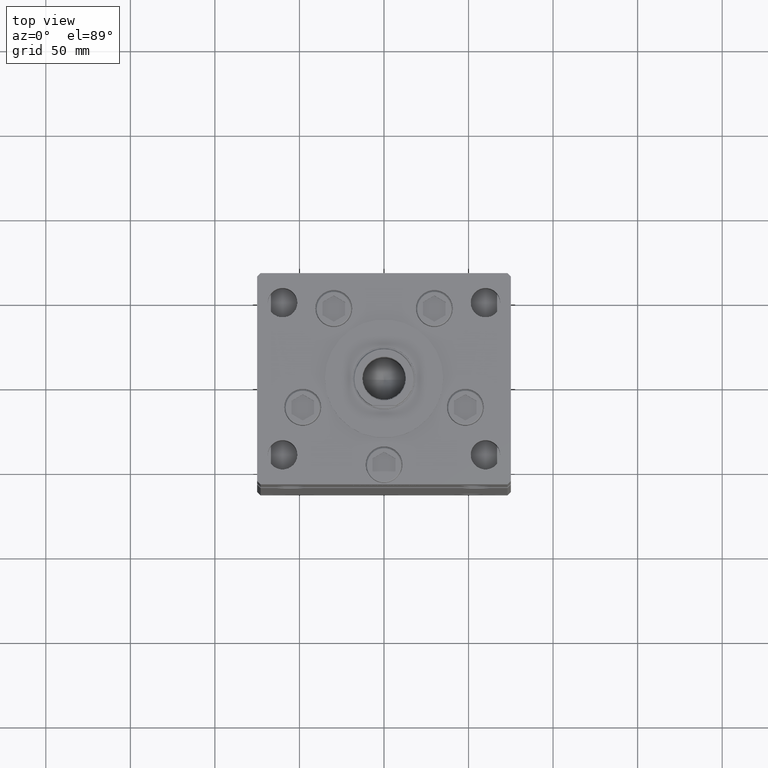
[diagram: clean part render]
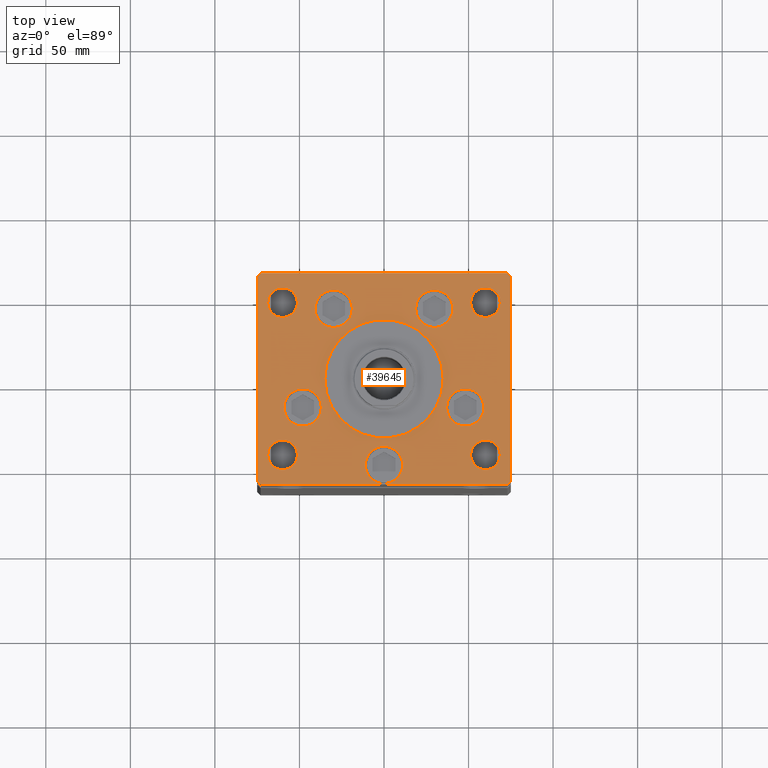
[diagram: same view with one face highlighted and labeled with its STEP entity id]
A machine part, top view. The second image highlights one B-rep face of the part: STEP entity #39645.
In plain terms, the highlighted planar face has unit normal (0, 0, 1).
Its self-contained STEP definition (entity closure, byte-faithful):
#78 = CARTESIAN_POINT ( 'NONE',  ( -73.00000000000001421, -62.50000000000002842, 0.000000000000000000 ) ) ;
#83 = DIRECTION ( 'NONE',  ( 0.7071067811865474617, -0.7071067811865474617, 0.000000000000000000 ) ) ;
#178 = VECTOR ( 'NONE', #50851, 1000.000000000000000 ) ;
#608 = EDGE_CURVE ( 'NONE', #21013, #11850, #14661, .T. ) ;
#827 = DIRECTION ( 'NONE',  ( 0.7071067811865489050, 0.7071067811865462405, 0.000000000000000000 ) ) ;
#1082 = CARTESIAN_POINT ( 'NONE',  ( -40.73102073172061921, 41.43749999999997868, 0.000000000000000000 ) ) ;
#1084 = EDGE_CURVE ( 'NONE', #23775, #37843, #22320, .T. ) ;
#1213 = CARTESIAN_POINT ( 'NONE',  ( -48.08326112068523628, -16.99999999999998934, 0.000000000000000000 ) ) ;
#1422 = VERTEX_POINT ( 'NONE', #19353 ) ;
#1559 = DIRECTION ( 'NONE',  ( 0.000000000000000000, 0.000000000000000000, 1.000000000000000000 ) ) ;
#1586 = DIRECTION ( 'NONE',  ( -1.000000000000000000, 0.000000000000000000, 0.000000000000000000 ) ) ;
#1623 = VERTEX_POINT ( 'NONE', #41062 ) ;
#1664 = CIRCLE ( 'NONE', #8554, 35.00000000000000711 ) ;
#1806 = AXIS2_PLACEMENT_3D ( 'NONE', #7361, #43826, #48111 ) ;
#1819 = DIRECTION ( 'NONE',  ( 1.000000000000000000, 0.000000000000000000, 0.000000000000000000 ) ) ;
#1905 = EDGE_CURVE ( 'NONE', #44679, #36700, #49202, .T. ) ;
#1926 = AXIS2_PLACEMENT_3D ( 'NONE', #31807, #40132, #11173 ) ;
#2133 = ORIENTED_EDGE ( 'NONE', *, *, #37989, .F. ) ;
#2354 = CARTESIAN_POINT ( 'NONE',  ( -51.25000000000000711, -45.00000000000000000, 0.000000000000000000 ) ) ;
#2385 = CARTESIAN_POINT ( 'NONE',  ( 73.00000000000001421, 62.50000000000000000, 0.000000000000000000 ) ) ;
#2654 = ORIENTED_EDGE ( 'NONE', *, *, #41648, .T. ) ;
#2692 = FACE_BOUND ( 'NONE', #3137, .T. ) ;
#2758 = CARTESIAN_POINT ( 'NONE',  ( 11.00000000000000000, -51.00000000000000000, 0.000000000000000000 ) ) ;
#3050 = LINE ( 'NONE', #7065, #32349 ) ;
#3137 = EDGE_LOOP ( 'NONE', ( #10493, #2133 ) ) ;
#3418 = VERTEX_POINT ( 'NONE', #2354 ) ;
#3974 = DIRECTION ( 'NONE',  ( 1.000000000000000000, 0.000000000000000000, 0.000000000000000000 ) ) ;
#4005 = EDGE_CURVE ( 'NONE', #36700, #44679, #20155, .T. ) ;
#4551 = EDGE_CURVE ( 'NONE', #16190, #44967, #38121, .T. ) ;
#4905 = EDGE_LOOP ( 'NONE', ( #47233, #14980 ) ) ;
#5086 = CARTESIAN_POINT ( 'NONE',  ( 0.000000000000000000, -6.938893903907228378E-15, 0.000000000000000000 ) ) ;
#5196 = CARTESIAN_POINT ( 'NONE',  ( -60.00000000000000711, -45.00000000000000000, 0.000000000000000000 ) ) ;
#5362 = LINE ( 'NONE', #21706, #42509 ) ;
#5373 = EDGE_CURVE ( 'NONE', #3418, #21278, #15045, .T. ) ;
#5455 = DIRECTION ( 'NONE',  ( 0.000000000000000000, 0.000000000000000000, 1.000000000000000000 ) ) ;
#5543 = EDGE_CURVE ( 'NONE', #51443, #13698, #6245, .T. ) ;
#5804 = VECTOR ( 'NONE', #48224, 1000.000000000000000 ) ;
#5873 = DIRECTION ( 'NONE',  ( -0.000000000000000000, -0.000000000000000000, -1.000000000000000000 ) ) ;
#6076 = LINE ( 'NONE', #6354, #178 ) ;
#6171 = FACE_BOUND ( 'NONE', #50510, .T. ) ;
#6245 = LINE ( 'NONE', #12061, #45031 ) ;
#6247 = DIRECTION ( 'NONE',  ( 1.000000000000000000, 0.000000000000000000, 0.000000000000000000 ) ) ;
#6354 = CARTESIAN_POINT ( 'NONE',  ( -75.00000000000000000, 60.50000000000000000, 0.000000000000000000 ) ) ;
#6610 = ORIENTED_EDGE ( 'NONE', *, *, #20934, .F. ) ;
#6713 = CARTESIAN_POINT ( 'NONE',  ( 0.000000000000000000, 0.000000000000000000, 0.000000000000000000 ) ) ;
#6853 = CIRCLE ( 'NONE', #52216, 11.00000000000000355 ) ;
#7065 = CARTESIAN_POINT ( 'NONE',  ( -75.00000000000000000, -60.50000000000004263, 0.000000000000000000 ) ) ;
#7164 = CIRCLE ( 'NONE', #13983, 8.750000000000000000 ) ;
#7361 = CARTESIAN_POINT ( 'NONE',  ( -29.73102073172061921, 41.43749999999997868, 0.000000000000000000 ) ) ;
#8231 = DIRECTION ( 'NONE',  ( 1.000000000000000000, 0.000000000000000000, 0.000000000000000000 ) ) ;
#8279 = EDGE_CURVE ( 'NONE', #1422, #25112, #5362, .T. ) ;
#8554 = AXIS2_PLACEMENT_3D ( 'NONE', #5086, #1559, #1819 ) ;
#8778 = CIRCLE ( 'NONE', #48919, 35.00000000000000711 ) ;
#8998 = ORIENTED_EDGE ( 'NONE', *, *, #36740, .T. ) ;
#9233 = AXIS2_PLACEMENT_3D ( 'NONE', #22181, #21680, #25697 ) ;
#9560 = CIRCLE ( 'NONE', #19832, 8.750000000000000000 ) ;
#9763 = CARTESIAN_POINT ( 'NONE',  ( -60.00000000000000000, 45.00000000000000711, 0.000000000000000000 ) ) ;
#10025 = CIRCLE ( 'NONE', #9233, 11.00000000000000355 ) ;
#10259 = EDGE_CURVE ( 'NONE', #24639, #1623, #10025, .T. ) ;
#10493 = ORIENTED_EDGE ( 'NONE', *, *, #27139, .F. ) ;
#11112 = DIRECTION ( 'NONE',  ( -1.000000000000000000, 0.000000000000000000, 0.000000000000000000 ) ) ;
#11142 = CIRCLE ( 'NONE', #45396, 8.750000000000007105 ) ;
#11173 = DIRECTION ( 'NONE',  ( 1.000000000000000000, 0.000000000000000000, 0.000000000000000000 ) ) ;
#11262 = EDGE_CURVE ( 'NONE', #48751, #45683, #3050, .T. ) ;
#11302 = AXIS2_PLACEMENT_3D ( 'NONE', #1213, #38190, #33909 ) ;
#11812 = CARTESIAN_POINT ( 'NONE',  ( 68.75000000000000000, -45.00000000000000000, 0.000000000000000000 ) ) ;
#11850 = VERTEX_POINT ( 'NONE', #37405 ) ;
#12061 = CARTESIAN_POINT ( 'NONE',  ( 73.00000000000001421, 62.50000000000000000, 0.000000000000000000 ) ) ;
#12461 = AXIS2_PLACEMENT_3D ( 'NONE', #24035, #15205, #51670 ) ;
#12780 = ORIENTED_EDGE ( 'NONE', *, *, #1084, .T. ) ;
#12907 = AXIS2_PLACEMENT_3D ( 'NONE', #6713, #27336, #51473 ) ;
#13017 = VERTEX_POINT ( 'NONE', #17368 ) ;
#13040 = DIRECTION ( 'NONE',  ( 1.000000000000000000, 0.000000000000000000, 0.000000000000000000 ) ) ;
#13251 = DIRECTION ( 'NONE',  ( 1.000000000000000000, 0.000000000000000000, 0.000000000000000000 ) ) ;
#13698 = VERTEX_POINT ( 'NONE', #46232 ) ;
#13761 = VERTEX_POINT ( 'NONE', #25588 ) ;
#13983 = AXIS2_PLACEMENT_3D ( 'NONE', #38315, #5873, #1586 ) ;
#13996 = DIRECTION ( 'NONE',  ( 0.000000000000000000, 0.000000000000000000, 1.000000000000000000 ) ) ;
#14117 = ORIENTED_EDGE ( 'NONE', *, *, #21030, .F. ) ;
#14474 = FACE_BOUND ( 'NONE', #37169, .T. ) ;
#14501 = CARTESIAN_POINT ( 'NONE',  ( 29.73102073172061921, 41.43749999999997868, 0.000000000000000000 ) ) ;
#14551 = DIRECTION ( 'NONE',  ( 0.000000000000000000, 0.000000000000000000, 1.000000000000000000 ) ) ;
#14661 = CIRCLE ( 'NONE', #21512, 11.00000000000000355 ) ;
#14980 = ORIENTED_EDGE ( 'NONE', *, *, #50220, .F. ) ;
#15045 = CIRCLE ( 'NONE', #17610, 8.750000000000000000 ) ;
#15205 = DIRECTION ( 'NONE',  ( 0.000000000000000000, 0.000000000000000000, 1.000000000000000000 ) ) ;
#15831 = EDGE_CURVE ( 'NONE', #13698, #36807, #26762, .T. ) ;
#16143 = DIRECTION ( 'NONE',  ( 0.000000000000000000, 1.000000000000000000, 0.000000000000000000 ) ) ;
#16190 = VERTEX_POINT ( 'NONE', #18297 ) ;
#16410 = ORIENTED_EDGE ( 'NONE', *, *, #45381, .F. ) ;
#17057 = CARTESIAN_POINT ( 'NONE',  ( -48.08326112068523628, -16.99999999999998934, 0.000000000000000000 ) ) ;
#17337 = CIRCLE ( 'NONE', #29317, 11.00000000000000000 ) ;
#17368 = CARTESIAN_POINT ( 'NONE',  ( -35.00000000000000711, -6.938893903907228378E-15, 0.000000000000000000 ) ) ;
#17610 = AXIS2_PLACEMENT_3D ( 'NONE', #5196, #20496, #13251 ) ;
#17736 = DIRECTION ( 'NONE',  ( 1.000000000000000000, 0.000000000000000000, 0.000000000000000000 ) ) ;
#18020 = CARTESIAN_POINT ( 'NONE',  ( 75.00000000000001421, 60.50000000000002842, 0.000000000000000000 ) ) ;
#18297 = CARTESIAN_POINT ( 'NONE',  ( 68.75000000000000000, 45.00000000000000000, 0.000000000000000000 ) ) ;
#19353 = CARTESIAN_POINT ( 'NONE',  ( 73.00000000000001421, -62.49999999999991473, 0.000000000000000000 ) ) ;
#19414 = DIRECTION ( 'NONE',  ( 1.000000000000000000, 0.000000000000000000, 0.000000000000000000 ) ) ;
#19830 = AXIS2_PLACEMENT_3D ( 'NONE', #45238, #40698, #3974 ) ;
#19832 = AXIS2_PLACEMENT_3D ( 'NONE', #40022, #49394, #23915 ) ;
#19850 = CARTESIAN_POINT ( 'NONE',  ( 29.73102073172061921, 41.43749999999997868, 0.000000000000000000 ) ) ;
#19937 = CIRCLE ( 'NONE', #1926, 8.750000000000007105 ) ;
#20155 = CIRCLE ( 'NONE', #40708, 11.00000000000000000 ) ;
#20496 = DIRECTION ( 'NONE',  ( 0.000000000000000000, 0.000000000000000000, 1.000000000000000000 ) ) ;
#20796 = CARTESIAN_POINT ( 'NONE',  ( -68.75000000000000000, 45.00000000000000711, 0.000000000000000000 ) ) ;
#20934 = EDGE_CURVE ( 'NONE', #1623, #24639, #6853, .T. ) ;
#21013 = VERTEX_POINT ( 'NONE', #33501 ) ;
#21030 = EDGE_CURVE ( 'NONE', #13761, #13017, #1664, .T. ) ;
#21278 = VERTEX_POINT ( 'NONE', #26766 ) ;
#21512 = AXIS2_PLACEMENT_3D ( 'NONE', #14501, #21758, #17736 ) ;
#21680 = DIRECTION ( 'NONE',  ( 0.000000000000000000, 0.000000000000000000, 1.000000000000000000 ) ) ;
#21706 = CARTESIAN_POINT ( 'NONE',  ( 73.00000000000001421, -62.49999999999991473, 0.000000000000000000 ) ) ;
#21758 = DIRECTION ( 'NONE',  ( 0.000000000000000000, 0.000000000000000000, 1.000000000000000000 ) ) ;
#22053 = DIRECTION ( 'NONE',  ( 1.000000000000000000, 0.000000000000000000, 0.000000000000000000 ) ) ;
#22181 = CARTESIAN_POINT ( 'NONE',  ( 48.08326112068523628, -16.99999999999998934, 0.000000000000000000 ) ) ;
#22320 = CIRCLE ( 'NONE', #42887, 8.750000000000007105 ) ;
#22510 = FACE_OUTER_BOUND ( 'NONE', #42487, .T. ) ;
#22593 = CARTESIAN_POINT ( 'NONE',  ( 51.25000000000000711, -45.00000000000000000, 0.000000000000000000 ) ) ;
#22608 = EDGE_CURVE ( 'NONE', #37843, #23775, #11142, .T. ) ;
#22866 = ORIENTED_EDGE ( 'NONE', *, *, #10259, .F. ) ;
#23426 = CARTESIAN_POINT ( 'NONE',  ( 0.000000000000000000, -6.938893903907228378E-15, 0.000000000000000000 ) ) ;
#23537 = ORIENTED_EDGE ( 'NONE', *, *, #22608, .T. ) ;
#23596 = EDGE_CURVE ( 'NONE', #30910, #51443, #38397, .T. ) ;
#23775 = VERTEX_POINT ( 'NONE', #20796 ) ;
#23915 = DIRECTION ( 'NONE',  ( -1.000000000000000000, 0.000000000000000000, 0.000000000000000000 ) ) ;
#23986 = CIRCLE ( 'NONE', #41121, 11.00000000000000355 ) ;
#23992 = ORIENTED_EDGE ( 'NONE', *, *, #26844, .T. ) ;
#24035 = CARTESIAN_POINT ( 'NONE',  ( 60.00000000000000000, 45.00000000000000000, 0.000000000000000000 ) ) ;
#24177 = LINE ( 'NONE', #37057, #27349 ) ;
#24639 = VERTEX_POINT ( 'NONE', #40396 ) ;
#25112 = VERTEX_POINT ( 'NONE', #32472 ) ;
#25588 = CARTESIAN_POINT ( 'NONE',  ( 35.00000000000000711, -2.652630106891490698E-15, 0.000000000000000000 ) ) ;
#25697 = DIRECTION ( 'NONE',  ( 1.000000000000000000, 0.000000000000000000, 0.000000000000000000 ) ) ;
#26612 = CARTESIAN_POINT ( 'NONE',  ( 75.00000000000001421, 60.50000000000002842, 0.000000000000000000 ) ) ;
#26762 = LINE ( 'NONE', #52247, #5804 ) ;
#26766 = CARTESIAN_POINT ( 'NONE',  ( -68.75000000000000000, -45.00000000000000000, 0.000000000000000000 ) ) ;
#26844 = EDGE_CURVE ( 'NONE', #36807, #48751, #6076, .T. ) ;
#27139 = EDGE_CURVE ( 'NONE', #40399, #49812, #27593, .T. ) ;
#27173 = ORIENTED_EDGE ( 'NONE', *, *, #41528, .T. ) ;
#27336 = DIRECTION ( 'NONE',  ( -0.000000000000000000, 0.000000000000000000, 1.000000000000000000 ) ) ;
#27349 = VECTOR ( 'NONE', #16143, 1000.000000000000000 ) ;
#27431 = DIRECTION ( 'NONE',  ( 0.000000000000000000, 0.000000000000000000, 1.000000000000000000 ) ) ;
#27593 = CIRCLE ( 'NONE', #11302, 11.00000000000000355 ) ;
#28412 = DIRECTION ( 'NONE',  ( 1.000000000000000000, 0.000000000000000000, 0.000000000000000000 ) ) ;
#28851 = CARTESIAN_POINT ( 'NONE',  ( 0.000000000000000000, -51.00000000000000000, 0.000000000000000000 ) ) ;
#29157 = EDGE_CURVE ( 'NONE', #13017, #13761, #8778, .T. ) ;
#29263 = ORIENTED_EDGE ( 'NONE', *, *, #5373, .F. ) ;
#29317 = AXIS2_PLACEMENT_3D ( 'NONE', #43249, #51567, #38695 ) ;
#29589 = ORIENTED_EDGE ( 'NONE', *, *, #41817, .F. ) ;
#29800 = ORIENTED_EDGE ( 'NONE', *, *, #32410, .F. ) ;
#30021 = ORIENTED_EDGE ( 'NONE', *, *, #23596, .T. ) ;
#30300 = LINE ( 'NONE', #50690, #45508 ) ;
#30507 = EDGE_CURVE ( 'NONE', #21278, #3418, #42914, .T. ) ;
#30910 = VERTEX_POINT ( 'NONE', #26612 ) ;
#30966 = VERTEX_POINT ( 'NONE', #22593 ) ;
#31101 = PLANE ( 'NONE',  #12907 ) ;
#31362 = FACE_BOUND ( 'NONE', #4905, .T. ) ;
#31431 = DIRECTION ( 'NONE',  ( -1.000000000000000000, -1.901066822988281950E-16, 0.000000000000000000 ) ) ;
#31465 = CARTESIAN_POINT ( 'NONE',  ( -18.73102073172061921, 41.43749999999997868, 0.000000000000000000 ) ) ;
#31631 = FACE_BOUND ( 'NONE', #50846, .T. ) ;
#31807 = CARTESIAN_POINT ( 'NONE',  ( 60.00000000000000000, 45.00000000000000000, 0.000000000000000000 ) ) ;
#31962 = ORIENTED_EDGE ( 'NONE', *, *, #51981, .T. ) ;
#32349 = VECTOR ( 'NONE', #83, 1000.000000000000114 ) ;
#32410 = EDGE_CURVE ( 'NONE', #49772, #51286, #17337, .T. ) ;
#32472 = CARTESIAN_POINT ( 'NONE',  ( 75.00000000000001421, -60.49999999999992184, 0.000000000000000000 ) ) ;
#33501 = CARTESIAN_POINT ( 'NONE',  ( 40.73102073172061921, 41.43749999999997868, 0.000000000000000000 ) ) ;
#33909 = DIRECTION ( 'NONE',  ( 1.000000000000000000, 0.000000000000000000, 0.000000000000000000 ) ) ;
#33913 = EDGE_LOOP ( 'NONE', ( #29263, #48286 ) ) ;
#34373 = DIRECTION ( 'NONE',  ( -0.7071067811865524577, 0.7071067811865426878, 0.000000000000000000 ) ) ;
#35119 = FACE_BOUND ( 'NONE', #33913, .T. ) ;
#35193 = CARTESIAN_POINT ( 'NONE',  ( 0.000000000000000000, -51.00000000000000000, 0.000000000000000000 ) ) ;
#36206 = DIRECTION ( 'NONE',  ( 0.000000000000000000, 0.000000000000000000, 1.000000000000000000 ) ) ;
#36336 = AXIS2_PLACEMENT_3D ( 'NONE', #28851, #13996, #8231 ) ;
#36700 = VERTEX_POINT ( 'NONE', #2758 ) ;
#36740 = EDGE_CURVE ( 'NONE', #25112, #30910, #24177, .T. ) ;
#36807 = VERTEX_POINT ( 'NONE', #45355 ) ;
#37057 = CARTESIAN_POINT ( 'NONE',  ( 75.00000000000001421, -60.49999999999992184, 0.000000000000000000 ) ) ;
#37169 = EDGE_LOOP ( 'NONE', ( #29800, #16410 ) ) ;
#37405 = CARTESIAN_POINT ( 'NONE',  ( 18.73102073172061921, 41.43749999999997868, 0.000000000000000000 ) ) ;
#37819 = CIRCLE ( 'NONE', #42917, 11.00000000000000355 ) ;
#37843 = VERTEX_POINT ( 'NONE', #47913 ) ;
#37989 = EDGE_CURVE ( 'NONE', #49812, #40399, #23986, .T. ) ;
#38097 = DIRECTION ( 'NONE',  ( 1.000000000000000000, 7.604267291953125828E-16, 0.000000000000000000 ) ) ;
#38121 = CIRCLE ( 'NONE', #12461, 8.750000000000007105 ) ;
#38190 = DIRECTION ( 'NONE',  ( 0.000000000000000000, 0.000000000000000000, 1.000000000000000000 ) ) ;
#38315 = CARTESIAN_POINT ( 'NONE',  ( 60.00000000000000711, -45.00000000000000000, 0.000000000000000000 ) ) ;
#38397 = LINE ( 'NONE', #18020, #47129 ) ;
#38695 = DIRECTION ( 'NONE',  ( 1.000000000000000000, 0.000000000000000000, 0.000000000000000000 ) ) ;
#38787 = EDGE_LOOP ( 'NONE', ( #46733, #29589 ) ) ;
#38993 = DIRECTION ( 'NONE',  ( -0.000000000000000000, -0.000000000000000000, -1.000000000000000000 ) ) ;
#39190 = CARTESIAN_POINT ( 'NONE',  ( 51.24999999999999289, 45.00000000000000000, 0.000000000000000000 ) ) ;
#39225 = CARTESIAN_POINT ( 'NONE',  ( 48.08326112068523628, -16.99999999999998934, 0.000000000000000000 ) ) ;
#39413 = FACE_BOUND ( 'NONE', #39594, .T. ) ;
#39594 = EDGE_LOOP ( 'NONE', ( #49978, #14117 ) ) ;
#39645 = ADVANCED_FACE ( 'NONE', ( #39413, #14474, #43164, #48260, #6171, #2692, #43432, #31362, #35119, #22510, #31631 ), #31101, .T. ) ;
#40022 = CARTESIAN_POINT ( 'NONE',  ( 60.00000000000000711, -45.00000000000000000, 0.000000000000000000 ) ) ;
#40053 = CARTESIAN_POINT ( 'NONE',  ( -59.08326112068523628, -16.99999999999998934, 0.000000000000000000 ) ) ;
#40132 = DIRECTION ( 'NONE',  ( 0.000000000000000000, 0.000000000000000000, 1.000000000000000000 ) ) ;
#40396 = CARTESIAN_POINT ( 'NONE',  ( 37.08326112068522917, -16.99999999999998934, 0.000000000000000000 ) ) ;
#40399 = VERTEX_POINT ( 'NONE', #51256 ) ;
#40698 = DIRECTION ( 'NONE',  ( 0.000000000000000000, 0.000000000000000000, 1.000000000000000000 ) ) ;
#40708 = AXIS2_PLACEMENT_3D ( 'NONE', #35193, #5455, #6247 ) ;
#41062 = CARTESIAN_POINT ( 'NONE',  ( 59.08326112068523628, -16.99999999999998934, 0.000000000000000000 ) ) ;
#41121 = AXIS2_PLACEMENT_3D ( 'NONE', #17057, #44695, #13040 ) ;
#41528 = EDGE_CURVE ( 'NONE', #30966, #50765, #9560, .T. ) ;
#41648 = EDGE_CURVE ( 'NONE', #45683, #1422, #30300, .T. ) ;
#41665 = EDGE_LOOP ( 'NONE', ( #23537, #12780 ) ) ;
#41817 = EDGE_CURVE ( 'NONE', #11850, #21013, #37819, .T. ) ;
#42487 = EDGE_LOOP ( 'NONE', ( #44530, #2654, #43374, #8998, #30021, #45539, #51499, #23992 ) ) ;
#42509 = VECTOR ( 'NONE', #827, 999.9999999999998863 ) ;
#42887 = AXIS2_PLACEMENT_3D ( 'NONE', #9763, #50522, #51307 ) ;
#42914 = CIRCLE ( 'NONE', #19830, 8.750000000000000000 ) ;
#42917 = AXIS2_PLACEMENT_3D ( 'NONE', #19850, #36206, #28412 ) ;
#43164 = FACE_BOUND ( 'NONE', #38787, .T. ) ;
#43249 = CARTESIAN_POINT ( 'NONE',  ( -29.73102073172061921, 41.43749999999997868, 0.000000000000000000 ) ) ;
#43374 = ORIENTED_EDGE ( 'NONE', *, *, #8279, .T. ) ;
#43432 = FACE_BOUND ( 'NONE', #41665, .T. ) ;
#43826 = DIRECTION ( 'NONE',  ( 0.000000000000000000, 0.000000000000000000, 1.000000000000000000 ) ) ;
#44530 = ORIENTED_EDGE ( 'NONE', *, *, #11262, .T. ) ;
#44666 = CIRCLE ( 'NONE', #1806, 11.00000000000000000 ) ;
#44679 = VERTEX_POINT ( 'NONE', #47831 ) ;
#44695 = DIRECTION ( 'NONE',  ( 0.000000000000000000, 0.000000000000000000, 1.000000000000000000 ) ) ;
#44967 = VERTEX_POINT ( 'NONE', #39190 ) ;
#45031 = VECTOR ( 'NONE', #31431, 1000.000000000000000 ) ;
#45238 = CARTESIAN_POINT ( 'NONE',  ( -60.00000000000000711, -45.00000000000000000, 0.000000000000000000 ) ) ;
#45355 = CARTESIAN_POINT ( 'NONE',  ( -75.00000000000000000, 60.50000000000000000, 0.000000000000000000 ) ) ;
#45381 = EDGE_CURVE ( 'NONE', #51286, #49772, #44666, .T. ) ;
#45396 = AXIS2_PLACEMENT_3D ( 'NONE', #47837, #38993, #11112 ) ;
#45508 = VECTOR ( 'NONE', #38097, 1000.000000000000000 ) ;
#45539 = ORIENTED_EDGE ( 'NONE', *, *, #5543, .T. ) ;
#45683 = VERTEX_POINT ( 'NONE', #78 ) ;
#45989 = EDGE_LOOP ( 'NONE', ( #6610, #22866 ) ) ;
#46232 = CARTESIAN_POINT ( 'NONE',  ( -72.99999999999998579, 62.49999999999997158, 0.000000000000000000 ) ) ;
#46733 = ORIENTED_EDGE ( 'NONE', *, *, #608, .F. ) ;
#47129 = VECTOR ( 'NONE', #34373, 1000.000000000000000 ) ;
#47233 = ORIENTED_EDGE ( 'NONE', *, *, #4551, .F. ) ;
#47831 = CARTESIAN_POINT ( 'NONE',  ( -11.00000000000000000, -51.00000000000000000, 0.000000000000000000 ) ) ;
#47837 = CARTESIAN_POINT ( 'NONE',  ( -60.00000000000000000, 45.00000000000000711, 0.000000000000000000 ) ) ;
#47913 = CARTESIAN_POINT ( 'NONE',  ( -51.25000000000000000, 45.00000000000000711, 0.000000000000000000 ) ) ;
#48111 = DIRECTION ( 'NONE',  ( 1.000000000000000000, 0.000000000000000000, 0.000000000000000000 ) ) ;
#48224 = DIRECTION ( 'NONE',  ( -0.7071067811865549002, -0.7071067811865401342, 0.000000000000000000 ) ) ;
#48260 = FACE_BOUND ( 'NONE', #45989, .T. ) ;
#48286 = ORIENTED_EDGE ( 'NONE', *, *, #30507, .F. ) ;
#48642 = ORIENTED_EDGE ( 'NONE', *, *, #1905, .F. ) ;
#48751 = VERTEX_POINT ( 'NONE', #52969 ) ;
#48919 = AXIS2_PLACEMENT_3D ( 'NONE', #23426, #27431, #19414 ) ;
#49202 = CIRCLE ( 'NONE', #36336, 11.00000000000000000 ) ;
#49394 = DIRECTION ( 'NONE',  ( -0.000000000000000000, -0.000000000000000000, -1.000000000000000000 ) ) ;
#49772 = VERTEX_POINT ( 'NONE', #31465 ) ;
#49812 = VERTEX_POINT ( 'NONE', #40053 ) ;
#49978 = ORIENTED_EDGE ( 'NONE', *, *, #29157, .F. ) ;
#50220 = EDGE_CURVE ( 'NONE', #44967, #16190, #19937, .T. ) ;
#50247 = ORIENTED_EDGE ( 'NONE', *, *, #4005, .F. ) ;
#50510 = EDGE_LOOP ( 'NONE', ( #50247, #48642 ) ) ;
#50522 = DIRECTION ( 'NONE',  ( -0.000000000000000000, -0.000000000000000000, -1.000000000000000000 ) ) ;
#50690 = CARTESIAN_POINT ( 'NONE',  ( -73.00000000000001421, -62.50000000000002842, 0.000000000000000000 ) ) ;
#50765 = VERTEX_POINT ( 'NONE', #11812 ) ;
#50846 = EDGE_LOOP ( 'NONE', ( #31962, #27173 ) ) ;
#50851 = DIRECTION ( 'NONE',  ( 0.000000000000000000, -1.000000000000000000, 0.000000000000000000 ) ) ;
#51256 = CARTESIAN_POINT ( 'NONE',  ( -37.08326112068522917, -16.99999999999998934, 0.000000000000000000 ) ) ;
#51286 = VERTEX_POINT ( 'NONE', #1082 ) ;
#51307 = DIRECTION ( 'NONE',  ( -1.000000000000000000, 0.000000000000000000, 0.000000000000000000 ) ) ;
#51443 = VERTEX_POINT ( 'NONE', #2385 ) ;
#51473 = DIRECTION ( 'NONE',  ( 1.000000000000000000, 0.000000000000000000, 0.000000000000000000 ) ) ;
#51499 = ORIENTED_EDGE ( 'NONE', *, *, #15831, .T. ) ;
#51567 = DIRECTION ( 'NONE',  ( 0.000000000000000000, 0.000000000000000000, 1.000000000000000000 ) ) ;
#51670 = DIRECTION ( 'NONE',  ( 1.000000000000000000, 0.000000000000000000, 0.000000000000000000 ) ) ;
#51981 = EDGE_CURVE ( 'NONE', #50765, #30966, #7164, .T. ) ;
#52216 = AXIS2_PLACEMENT_3D ( 'NONE', #39225, #14551, #22053 ) ;
#52247 = CARTESIAN_POINT ( 'NONE',  ( -72.99999999999998579, 62.49999999999997158, 0.000000000000000000 ) ) ;
#52969 = CARTESIAN_POINT ( 'NONE',  ( -75.00000000000000000, -60.50000000000004263, 0.000000000000000000 ) ) ;